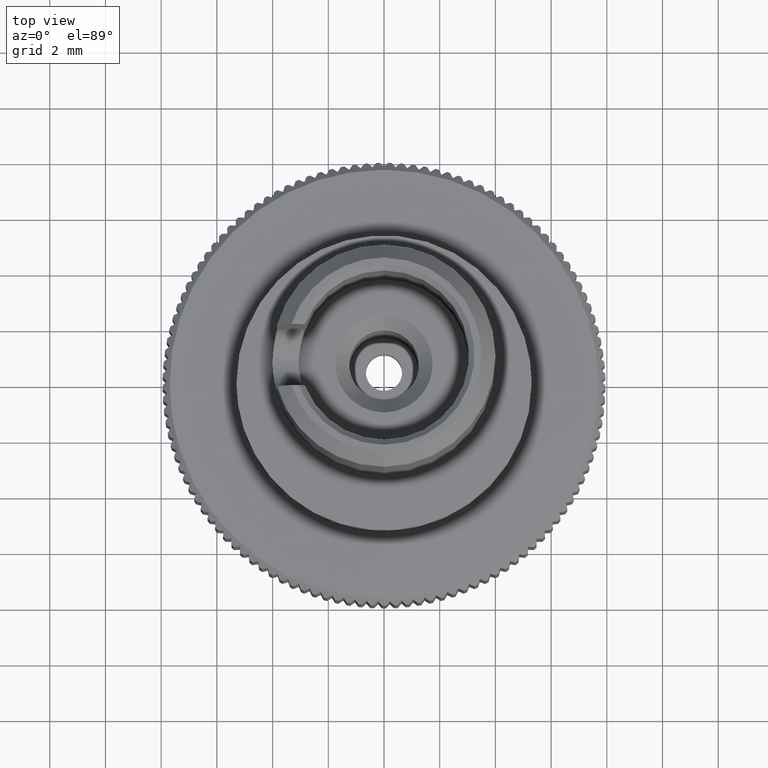
[diagram: clean part render]
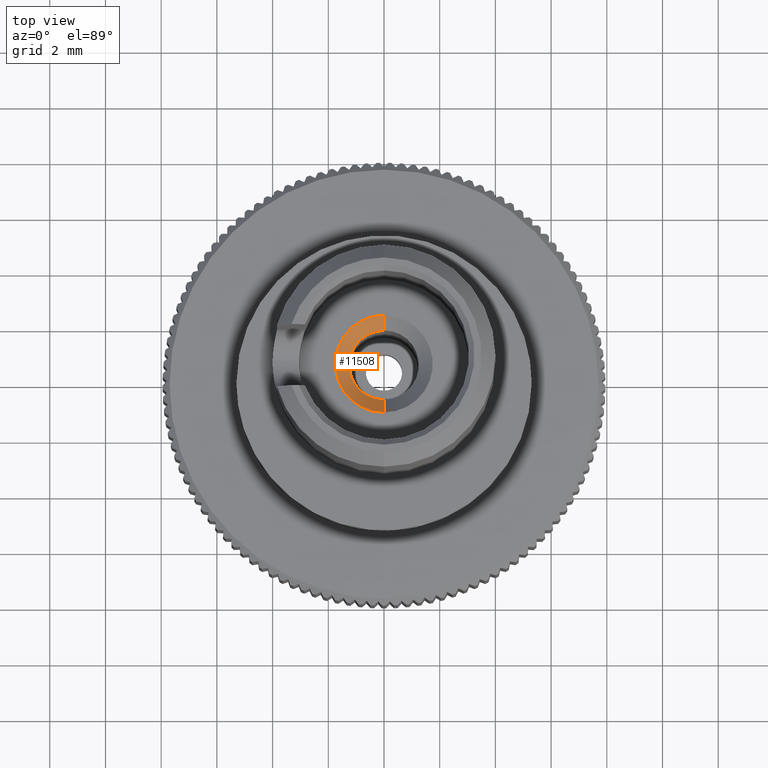
[diagram: same view with one face highlighted and labeled with its STEP entity id]
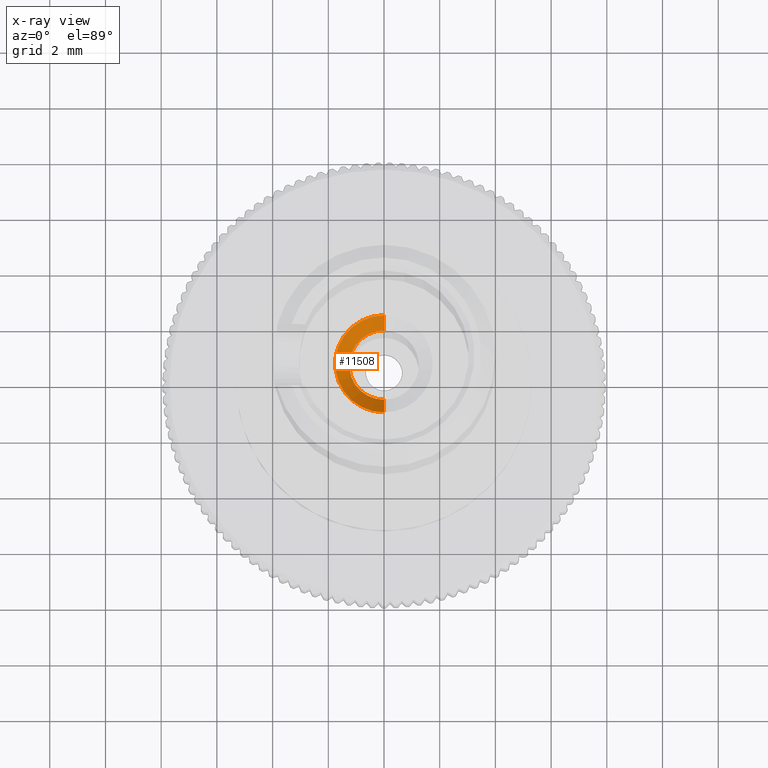
[diagram: x-ray of the same camera — body ghosted, the highlighted face saturated]
A machine part, top view. The second image highlights one B-rep face of the part: STEP entity #11508.
The next image is the same camera in x-ray: the body ghosted, the highlighted face saturated — about 0% of this face is hidden behind the body in this view.
In plain terms, the highlighted conical surface has half-angle 45 deg.
Its self-contained STEP definition (entity closure, byte-faithful):
#263 = AXIS2_PLACEMENT_3D ( 'NONE', #4563, #12098, #10638 ) ;
#423 = CIRCLE ( 'NONE', #11412, 1.750000000194223082 ) ;
#436 = EDGE_CURVE ( 'NONE', #7847, #696, #4394, .T. ) ;
#696 = VERTEX_POINT ( 'NONE', #8153 ) ;
#1007 = ORIENTED_EDGE ( 'NONE', *, *, #7977, .T. ) ;
#1218 = ORIENTED_EDGE ( 'NONE', *, *, #13602, .T. ) ;
#1864 = CARTESIAN_POINT ( 'NONE',  ( 1.530808499484347850E-16, 1.886234783936967974, 8.941687979109659068 ) ) ;
#1884 = DIRECTION ( 'NONE',  ( 6.890936498074053834E-16, 0.07062698593075319997, 0.9975027964162994643 ) ) ;
#2237 = CARTESIAN_POINT ( 'NONE',  ( 0.000000000000000000, 0.6393562873683931169, 9.029971711595731421 ) ) ;
#2269 = CONICAL_SURFACE ( 'NONE', #263, 1.250000000449231541, 0.7853981632989704975 ) ;
#2788 = ORIENTED_EDGE ( 'NONE', *, *, #436, .F. ) ;
#2821 = CARTESIAN_POINT ( 'NONE',  ( 6.070324261358128268E-31, -0.6075222080000000080, 9.118255443999997212 ) ) ;
#3110 = LINE ( 'NONE', #1864, #7017 ) ;
#3707 = VERTEX_POINT ( 'NONE', #13761 ) ;
#3897 = VECTOR ( 'NONE', #11328, 1000.000000000000000 ) ;
#4032 = DIRECTION ( 'NONE',  ( 5.738583983144105452E-16, 0.7552818122203696083, 0.6554001709864855085 ) ) ;
#4394 = LINE ( 'NONE', #2821, #3897 ) ;
#4563 = CARTESIAN_POINT ( 'NONE',  ( 6.070324261358128268E-31, 0.6393562879684839828, 9.029971711554829028 ) ) ;
#5324 = DIRECTION ( 'NONE',  ( 0.000000000000000000, 0.07062698593201487129, 0.9975027964162099803 ) ) ;
#5559 = CARTESIAN_POINT ( 'NONE',  ( 3.445468247958388805E-16, 0.6746697809228052733, 9.528723109606838548 ) ) ;
#5634 = FACE_OUTER_BOUND ( 'NONE', #12870, .T. ) ;
#5798 = CIRCLE ( 'NONE', #10969, 1.249999999847750454 ) ;
#5825 = CARTESIAN_POINT ( 'NONE',  ( 0.000000000000000000, -0.6075222080000000080, 9.118255443999997212 ) ) ;
#7017 = VECTOR ( 'NONE', #4032, 1000.000000000000000 ) ;
#7569 = ORIENTED_EDGE ( 'NONE', *, *, #8180, .F. ) ;
#7847 = VERTEX_POINT ( 'NONE', #5825 ) ;
#7977 = EDGE_CURVE ( 'NONE', #3707, #696, #423, .T. ) ;
#8072 = DIRECTION ( 'NONE',  ( 0.000000000000000000, -0.9975027964162994643, 0.07062698593075339426 ) ) ;
#8153 = CARTESIAN_POINT ( 'NONE',  ( 3.445468247958397680E-16, -1.070960112999457703, 9.652320334999373586 ) ) ;
#8180 = EDGE_CURVE ( 'NONE', #8233, #7847, #5798, .T. ) ;
#8233 = VERTEX_POINT ( 'NONE', #12143 ) ;
#10638 = DIRECTION ( 'NONE',  ( 0.000000000000000000, -0.9975027964162994643, 0.07062698593075251996 ) ) ;
#10969 = AXIS2_PLACEMENT_3D ( 'NONE', #2237, #5324, #13897 ) ;
#11328 = DIRECTION ( 'NONE',  ( 4.872627926993889755E-16, -0.6554001708377285018, 0.7552818123494543512 ) ) ;
#11412 = AXIS2_PLACEMENT_3D ( 'NONE', #5559, #1884, #8072 ) ;
#11508 = ADVANCED_FACE ( 'NONE', ( #5634 ), #2269, .F. ) ;
#12098 = DIRECTION ( 'NONE',  ( 6.890936498074053834E-16, 0.07062698593075319997, 0.9975027964162994643 ) ) ;
#12143 = CARTESIAN_POINT ( 'NONE',  ( 1.530808499458673386E-16, 1.886234783933588677, 8.941687979106728079 ) ) ;
#12870 = EDGE_LOOP ( 'NONE', ( #7569, #1218, #1007, #2788 ) ) ;
#13602 = EDGE_CURVE ( 'NONE', #8233, #3707, #3110, .T. ) ;
#13761 = CARTESIAN_POINT ( 'NONE',  ( 5.588600146704108280E-16, 2.420299674845066917, 9.405125884214303511 ) ) ;
#13897 = DIRECTION ( 'NONE',  ( 0.000000000000000000, -0.9975027964162099803, 0.07062698593201471864 ) ) ;